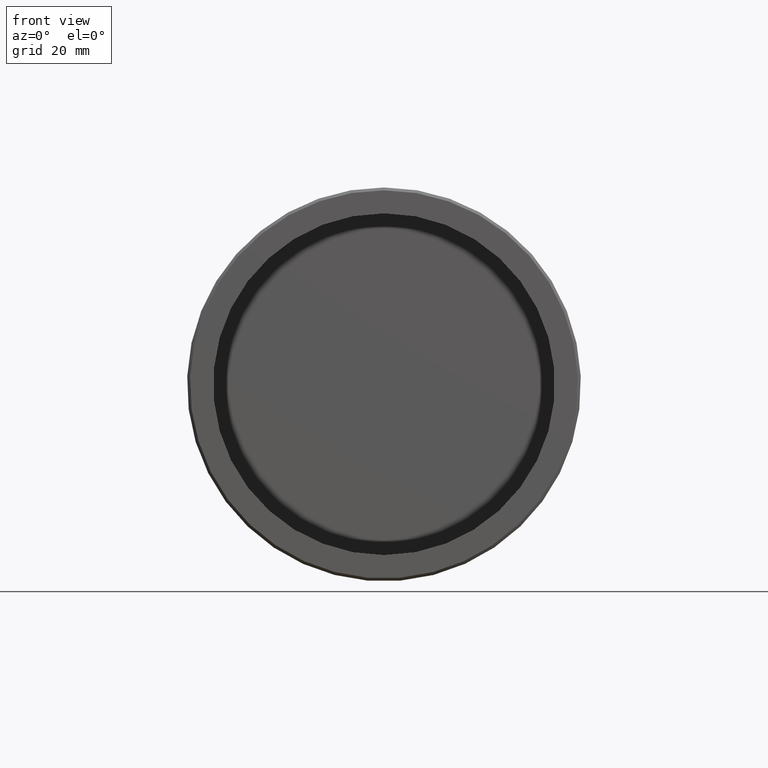
[diagram: clean part render]
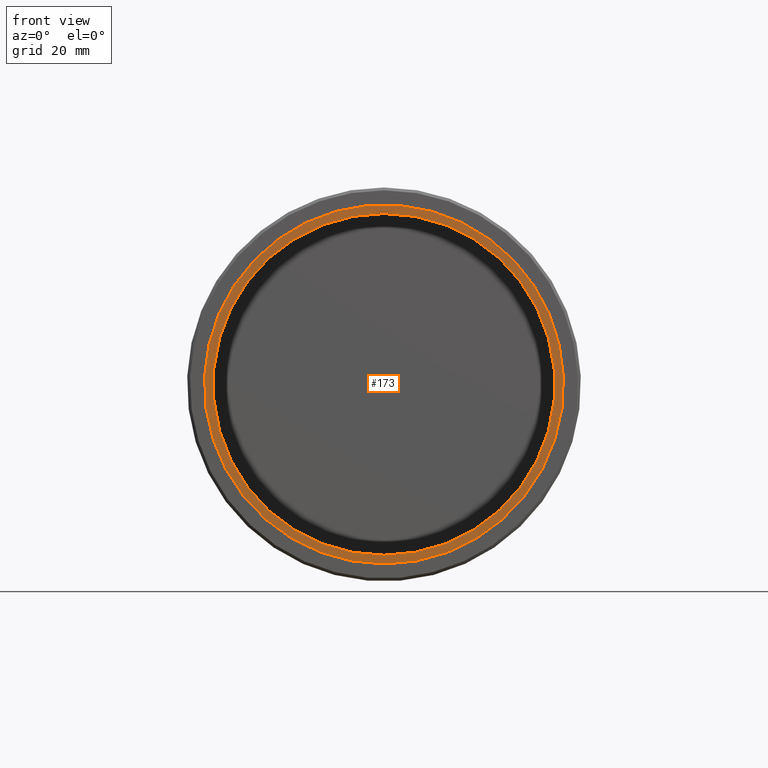
[diagram: same view with one face highlighted and labeled with its STEP entity id]
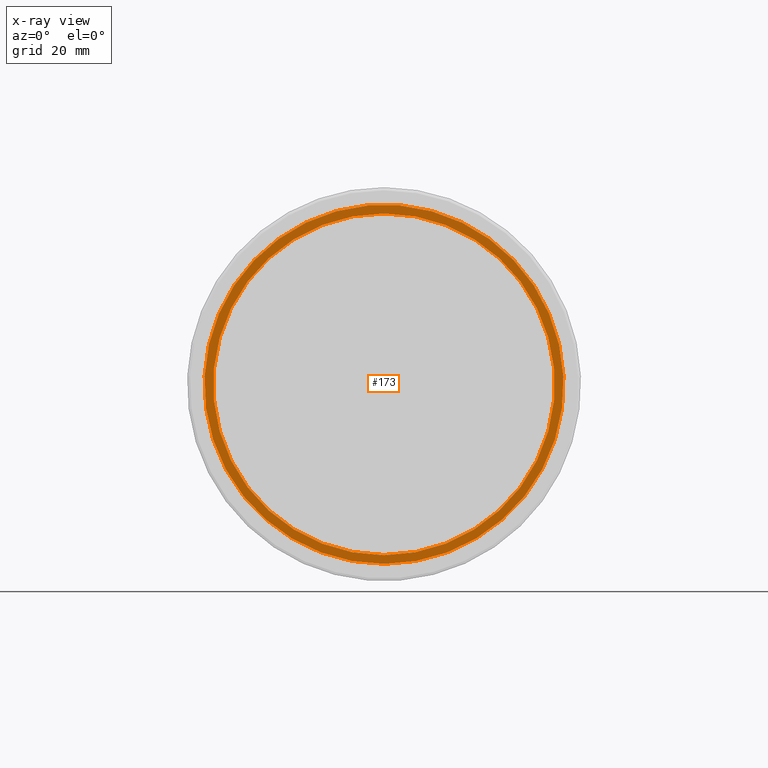
[diagram: x-ray of the same camera — body ghosted, the highlighted face saturated]
A machine part, front view. The second image highlights one B-rep face of the part: STEP entity #173.
The next image is the same camera in x-ray: the body ghosted, the highlighted face saturated — about 0% of this face is hidden behind the body in this view.
In plain terms, the highlighted planar face has unit normal (0, -1, 0).
Its self-contained STEP definition (entity closure, byte-faithful):
#1 = DIRECTION ( 'NONE',  ( 0.000000000000000000, 0.000000000000000000, -1.000000000000000000 ) ) ;
#10 = ORIENTED_EDGE ( 'NONE', *, *, #321, .T. ) ;
#15 = AXIS2_PLACEMENT_3D ( 'NONE', #296, #185, #43 ) ;
#25 = CARTESIAN_POINT ( 'NONE',  ( 0.000000000000000000, 6.479999999999999538, 0.000000000000000000 ) ) ;
#28 = CARTESIAN_POINT ( 'NONE',  ( 0.000000000000000000, 6.479999999999999538, -29.50000000000000355 ) ) ;
#43 = DIRECTION ( 'NONE',  ( 0.000000000000000000, -0.000000000000000000, -1.000000000000000000 ) ) ;
#76 = DIRECTION ( 'NONE',  ( 0.000000000000000000, -1.000000000000000000, 0.000000000000000000 ) ) ;
#82 = EDGE_LOOP ( 'NONE', ( #88 ) ) ;
#87 = AXIS2_PLACEMENT_3D ( 'NONE', #25, #352, #1 ) ;
#88 = ORIENTED_EDGE ( 'NONE', *, *, #154, .F. ) ;
#114 = CIRCLE ( 'NONE', #258, 29.50000000000000355 ) ;
#130 = VERTEX_POINT ( 'NONE', #220 ) ;
#137 = VERTEX_POINT ( 'NONE', #28 ) ;
#154 = EDGE_CURVE ( 'NONE', #137, #137, #114, .T. ) ;
#157 = PLANE ( 'NONE',  #15 ) ;
#173 = ADVANCED_FACE ( 'NONE', ( #214, #350 ), #157, .T. ) ;
#181 = DIRECTION ( 'NONE',  ( 0.000000000000000000, 0.000000000000000000, -1.000000000000000000 ) ) ;
#185 = DIRECTION ( 'NONE',  ( 0.000000000000000000, -1.000000000000000000, 0.000000000000000000 ) ) ;
#214 = FACE_BOUND ( 'NONE', #82, .T. ) ;
#220 = CARTESIAN_POINT ( 'NONE',  ( 0.000000000000000000, 6.479999999999999538, -31.00000000000000000 ) ) ;
#258 = AXIS2_PLACEMENT_3D ( 'NONE', #346, #76, #181 ) ;
#296 = CARTESIAN_POINT ( 'NONE',  ( 0.000000000000000000, 6.479999999999999538, 0.000000000000000000 ) ) ;
#318 = CIRCLE ( 'NONE', #87, 31.00000000000000000 ) ;
#321 = EDGE_CURVE ( 'NONE', #130, #130, #318, .T. ) ;
#346 = CARTESIAN_POINT ( 'NONE',  ( 0.000000000000000000, 6.479999999999999538, 0.000000000000000000 ) ) ;
#350 = FACE_OUTER_BOUND ( 'NONE', #355, .T. ) ;
#352 = DIRECTION ( 'NONE',  ( 0.000000000000000000, -1.000000000000000000, 0.000000000000000000 ) ) ;
#355 = EDGE_LOOP ( 'NONE', ( #10 ) ) ;